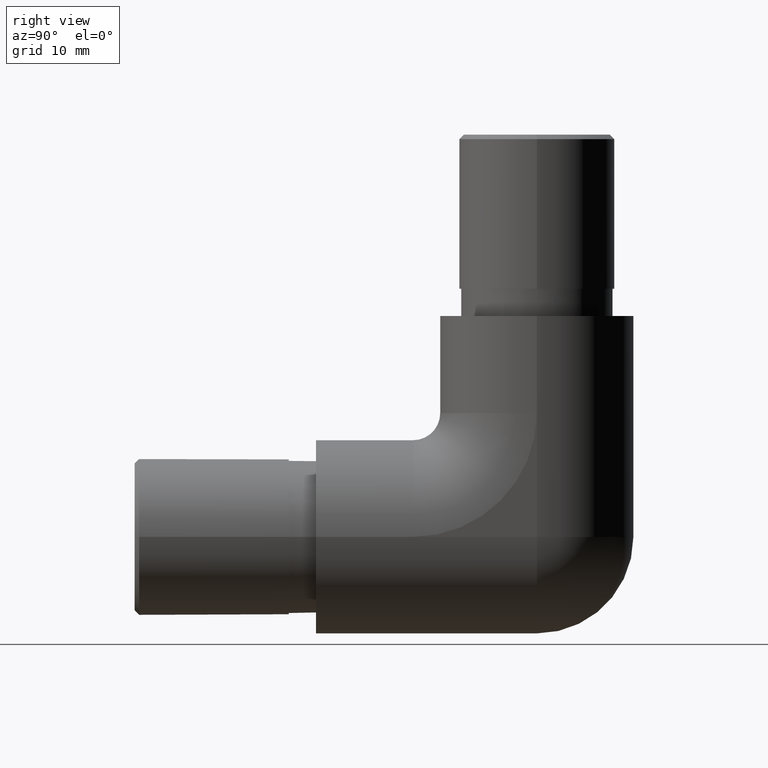
[diagram: clean part render]
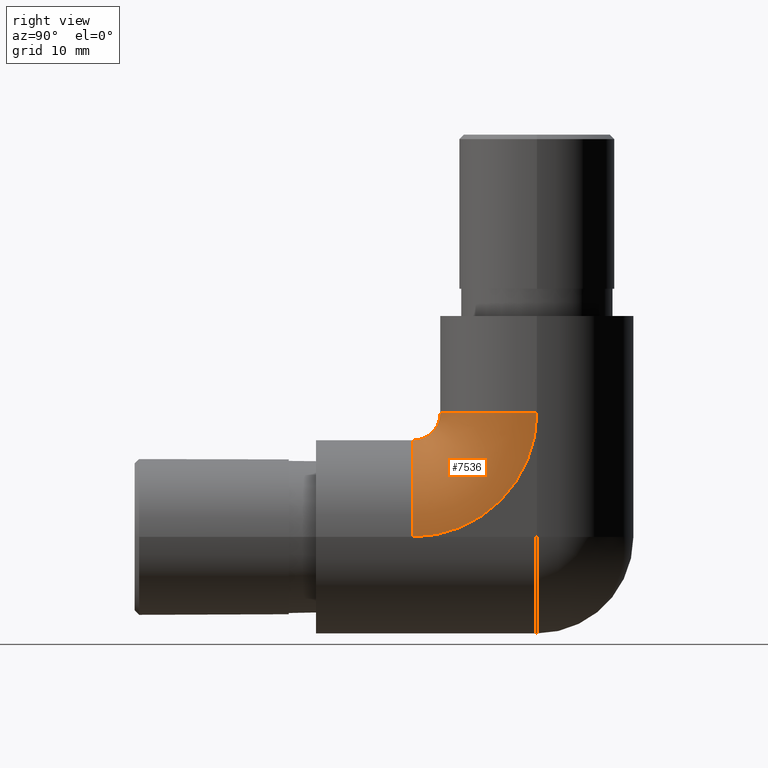
[diagram: same view with one face highlighted and labeled with its STEP entity id]
A machine part, right view. The second image highlights one B-rep face of the part: STEP entity #7536.
In plain terms, the highlighted toroidal blend (fillet) surface has major radius 13.65 mm and minor (blend) radius 10.65 mm.
Its self-contained STEP definition (entity closure, byte-faithful):
#562 = EDGE_CURVE ( 'NONE', #12722, #996, #6195, .T. ) ;
#864 = EDGE_CURVE ( 'NONE', #13254, #12722, #11664, .T. ) ;
#950 = DIRECTION ( 'NONE',  ( 0.0000000000000000000, 0.0000000000000000000, -1.000000000000000000 ) ) ;
#996 = VERTEX_POINT ( 'NONE', #6241 ) ;
#1468 = DIRECTION ( 'NONE',  ( -1.628848334250524000E-016, 0.0000000000000000000, -1.000000000000000000 ) ) ;
#1607 = DIRECTION ( 'NONE',  ( 1.000000000000000000, 0.0000000000000000000, -2.443272501375785000E-016 ) ) ;
#2239 = AXIS2_PLACEMENT_3D ( 'NONE', #8953, #1607, #8904 ) ;
#2464 = CARTESIAN_POINT ( 'NONE',  ( 3.469446951953614200E-015, 10.69999999999999400, 13.64999999999999900 ) ) ;
#3132 = CIRCLE ( 'NONE', #5401, 13.64999999999999900 ) ;
#3157 = EDGE_LOOP ( 'NONE', ( #5493, #12559, #9404, #8169 ) ) ;
#4279 = EDGE_CURVE ( 'NONE', #10296, #996, #7425, .T. ) ;
#4428 = DIRECTION ( 'NONE',  ( -1.000000000000000000, -0.0000000000000000000, 2.443272501375785000E-016 ) ) ;
#5266 = AXIS2_PLACEMENT_3D ( 'NONE', #13251, #6079, #950 ) ;
#5401 = AXIS2_PLACEMENT_3D ( 'NONE', #5537, #4428, #10670 ) ;
#5493 = ORIENTED_EDGE ( 'NONE', *, *, #864, .T. ) ;
#5537 = CARTESIAN_POINT ( 'NONE',  ( 10.65000000000000600, 10.69999999999999400, 13.64999999999999500 ) ) ;
#6079 = DIRECTION ( 'NONE',  ( 0.0000000000000000000, -1.000000000000000000, 0.0000000000000000000 ) ) ;
#6195 = CIRCLE ( 'NONE', #12430, 2.999999999999999100 ) ;
#6241 = CARTESIAN_POINT ( 'NONE',  ( 2.602085213965210200E-015, 10.69999999999999400, 10.65000000000000000 ) ) ;
#6707 = CARTESIAN_POINT ( 'NONE',  ( 5.204170427930421300E-015, 24.34999999999999100, 13.64999999999999900 ) ) ;
#7425 = CIRCLE ( 'NONE', #5266, 10.65000000000000000 ) ;
#7536 = ADVANCED_FACE ( 'NONE', ( #13137 ), #10381, .T. ) ;
#8129 = CARTESIAN_POINT ( 'NONE',  ( 10.65000000000000200, 10.69999999999999400, -3.469446951953614200E-015 ) ) ;
#8169 = ORIENTED_EDGE ( 'NONE', *, *, #10095, .F. ) ;
#8419 = CARTESIAN_POINT ( 'NONE',  ( 10.65000000000000600, 24.35000000000000500, 13.64999999999999500 ) ) ;
#8904 = DIRECTION ( 'NONE',  ( -2.443272501375785000E-016, 0.0000000000000000000, -1.000000000000000000 ) ) ;
#8953 = CARTESIAN_POINT ( 'NONE',  ( 5.204170427930421300E-015, 10.69999999999999400, 13.64999999999999900 ) ) ;
#9404 = ORIENTED_EDGE ( 'NONE', *, *, #4279, .F. ) ;
#9651 = DIRECTION ( 'NONE',  ( -1.000000000000000000, -0.0000000000000000000, 1.628848334250523100E-016 ) ) ;
#10095 = EDGE_CURVE ( 'NONE', #13254, #10296, #3132, .T. ) ;
#10296 = VERTEX_POINT ( 'NONE', #8129 ) ;
#10381 = TOROIDAL_SURFACE ( 'NONE', #2239, 13.64999999999999900, 10.65000000000000000 ) ;
#10670 = DIRECTION ( 'NONE',  ( -2.541719378720596800E-016, 0.0000000000000000000, -1.000000000000000000 ) ) ;
#10708 = DIRECTION ( 'NONE',  ( -3.257696668501046600E-016, -2.242095968442846400E-032, -1.000000000000000000 ) ) ;
#10801 = DIRECTION ( 'NONE',  ( -1.000000000000000000, 0.0000000000000000000, 3.257696668501046100E-016 ) ) ;
#11314 = AXIS2_PLACEMENT_3D ( 'NONE', #6707, #10708, #10801 ) ;
#11664 = CIRCLE ( 'NONE', #11314, 10.65000000000000000 ) ;
#12430 = AXIS2_PLACEMENT_3D ( 'NONE', #2464, #9651, #1468 ) ;
#12559 = ORIENTED_EDGE ( 'NONE', *, *, #562, .T. ) ;
#12722 = VERTEX_POINT ( 'NONE', #12952 ) ;
#12952 = CARTESIAN_POINT ( 'NONE',  ( 5.204170427930421300E-015, 13.69999999999999400, 13.64999999999999900 ) ) ;
#13137 = FACE_OUTER_BOUND ( 'NONE', #3157, .T. ) ;
#13251 = CARTESIAN_POINT ( 'NONE',  ( 1.734723475976807100E-015, 10.69999999999999400, 0.0000000000000000000 ) ) ;
#13254 = VERTEX_POINT ( 'NONE', #8419 ) ;